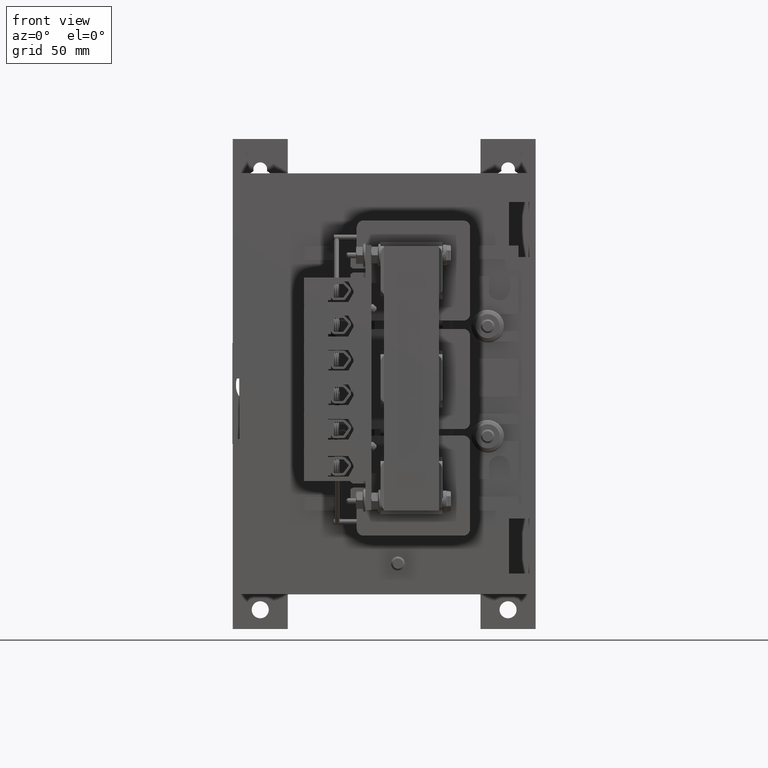
[diagram: clean part render]
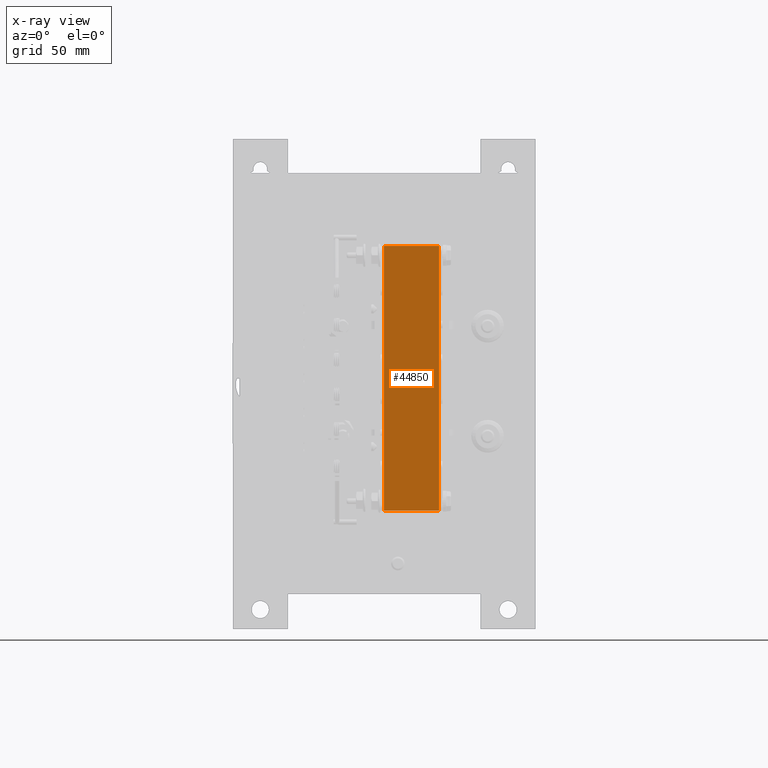
[diagram: x-ray — body ghosted, one internal face saturated and labeled with its STEP entity id]
A machine part, front view, then the same camera in x-ray: the body is ghosted and one INTERNAL B-rep face — a face not visible from any outside direction — is saturated and labeled: STEP entity #44850.
In plain terms, the highlighted planar face has unit normal (0, 1, 0).
Its self-contained STEP definition (entity closure, byte-faithful):
#1804=PLANE('',#48333);
#4662=FACE_OUTER_BOUND('',#7253,.T.);
#7253=EDGE_LOOP('',(#33503,#33504,#33505,#33506));
#10306=LINE('',#66070,#15041);
#10338=LINE('',#66133,#15073);
#10339=LINE('',#66136,#15074);
#10340=LINE('',#66137,#15075);
#15041=VECTOR('',#53634,0.393700787401575);
#15073=VECTOR('',#53686,0.393700787401575);
#15074=VECTOR('',#53689,0.393700787401575);
#15075=VECTOR('',#53690,0.393700787401575);
#21056=VERTEX_POINT('',#66068);
#21057=VERTEX_POINT('',#66069);
#21078=VERTEX_POINT('',#66131);
#21079=VERTEX_POINT('',#66135);
#25784=EDGE_CURVE('',#21056,#21057,#10306,.T.);
#25816=EDGE_CURVE('',#21057,#21078,#10338,.T.);
#25817=EDGE_CURVE('',#21078,#21079,#10339,.T.);
#25818=EDGE_CURVE('',#21056,#21079,#10340,.T.);
#33503=ORIENTED_EDGE('',*,*,#25817,.T.);
#33504=ORIENTED_EDGE('',*,*,#25818,.F.);
#33505=ORIENTED_EDGE('',*,*,#25784,.T.);
#33506=ORIENTED_EDGE('',*,*,#25816,.T.);
#44850=ADVANCED_FACE('',(#4662),#1804,.T.);
#48333=AXIS2_PLACEMENT_3D('',#66134,#53687,#53688);
#53634=DIRECTION('',(1.,1.27221195546943E-16,0.));
#53686=DIRECTION('',(0.,0.,1.));
#53687=DIRECTION('center_axis',(1.27221195546943E-16,-1.,0.));
#53688=DIRECTION('ref_axis',(0.,0.,-1.));
#53689=DIRECTION('',(-1.,-1.27221195546943E-16,0.));
#53690=DIRECTION('',(0.,0.,1.));
#66068=CARTESIAN_POINT('',(-0.802491140062581,-0.660740555791972,-0.5));
#66069=CARTESIAN_POINT('',(4.00750885993742,-0.660740555791971,-0.5));
#66070=CARTESIAN_POINT('',(-0.802491140062581,-0.660740555791972,-0.5));
#66131=CARTESIAN_POINT('',(4.00750885993742,-0.660740555791971,0.5));
#66133=CARTESIAN_POINT('',(4.00750885993742,-0.660740555791971,0.));
#66134=CARTESIAN_POINT('Origin',(4.00750885993742,-0.660740555791971,0.));
#66135=CARTESIAN_POINT('',(-0.802491140062581,-0.660740555791972,0.5));
#66136=CARTESIAN_POINT('',(-0.802491140062581,-0.660740555791972,0.5));
#66137=CARTESIAN_POINT('',(-0.802491140062581,-0.660740555791972,0.));